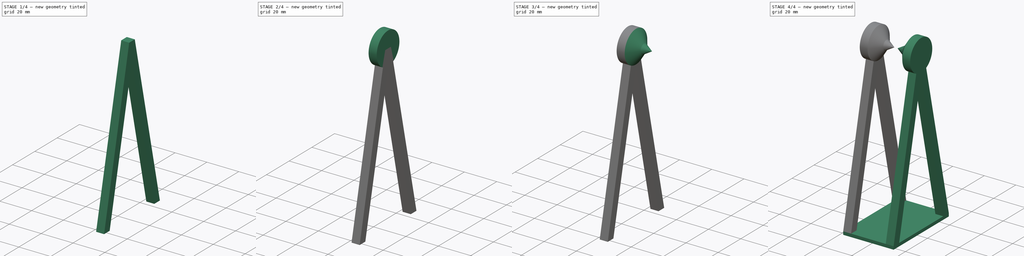
[diagram: build sequence overview — one tinted view per stage of 4, left to right]
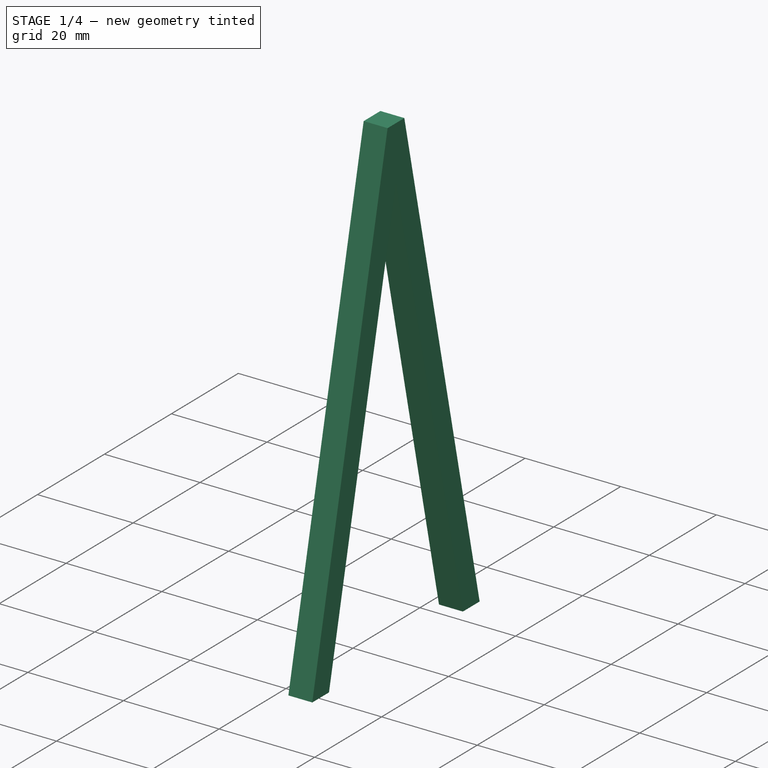
[diagram: stage 1 of 4 — iso view after this stage's code; geometry added in this stage tinted green]
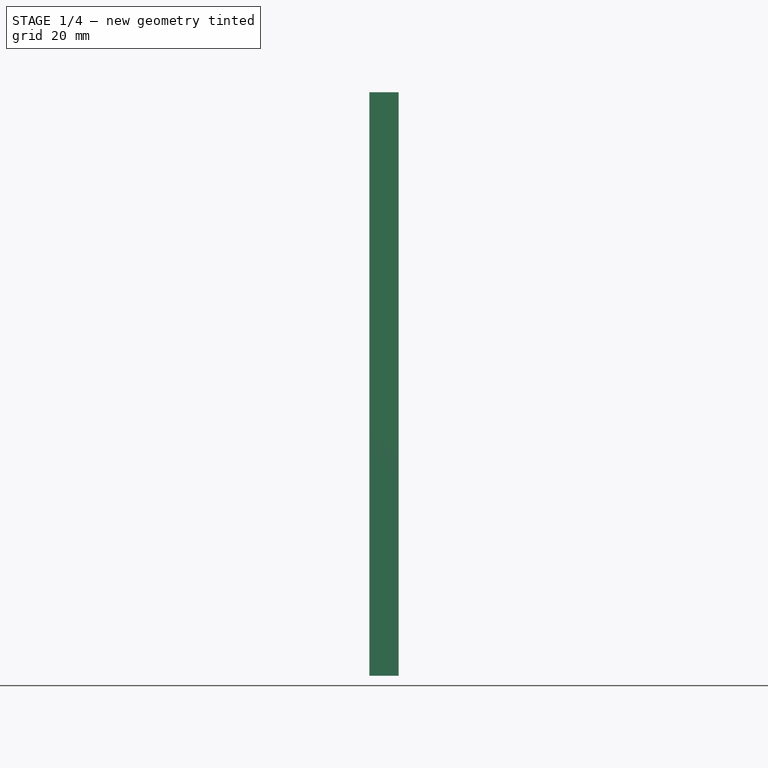
[diagram: stage 1 of 4 — front view after this stage's code; geometry added in this stage tinted green]
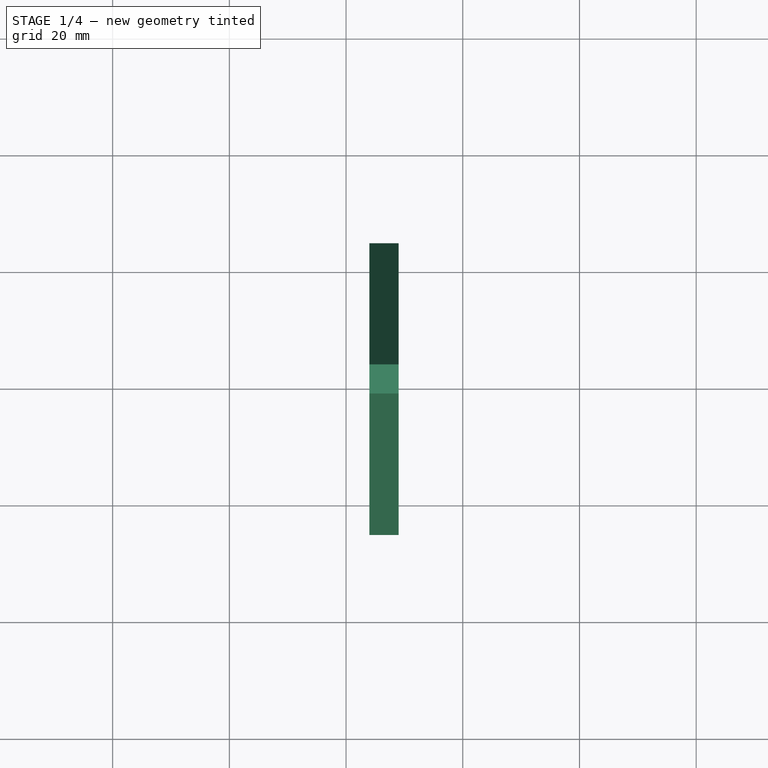
[diagram: stage 1 of 4 — top view after this stage's code; geometry added in this stage tinted green]
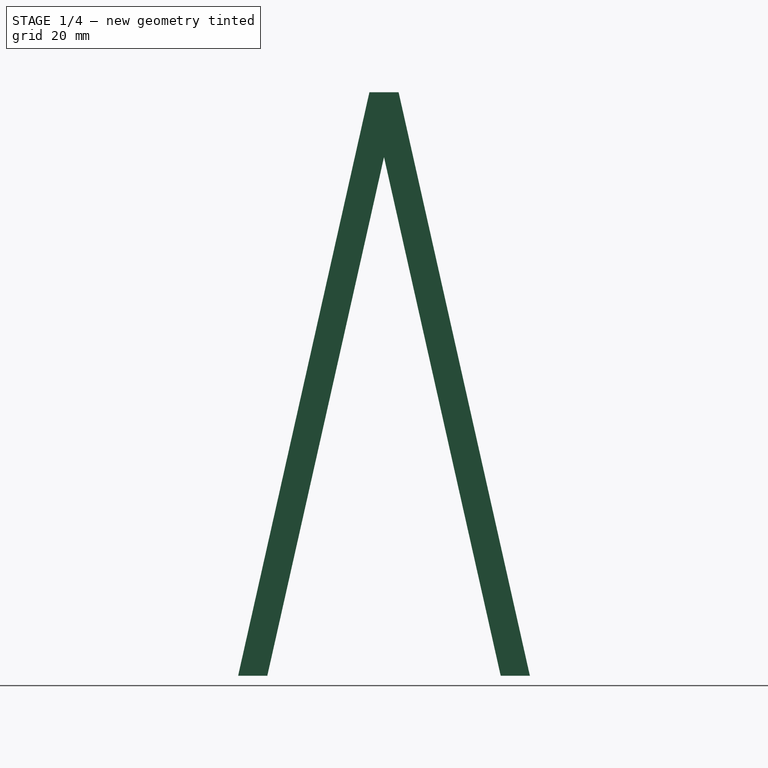
[diagram: stage 1 of 4 — right view after this stage's code; geometry added in this stage tinted green]
FCSTD DOCUMENT  (FreeCAD 0.18.4R)
Label: impeller-balancing-tool
License: All rights reserved
LicenseURL: http://en.wikipedia.org/wiki/All_rights_reserved
objects: Sketcher::SketchObject×5, Part::MultiFuse×3, PartDesign::Pad×2, PartDesign::Body×2, Part::Loft×2, PartDesign::AdditiveCone×2, PartDesign::FeatureBase×1, Part::Mirroring×1
note: 22 computed .brp shape members not serialized (recipe doc carries the construction recipe); baked Part::Feature solids carry a one-line shape summary decoded from their .brp

FEATURE [Sketcher::SketchObject] Sketch
  MapMode = 5
  Support = -> [XY_Plane]
  sketch-geometry (4):
    g0: LineSegment StartX=-16 StartY=25 StartZ=0 EndX=16 EndY=25 EndZ=0
    g1: LineSegment StartX=16 StartY=25 StartZ=0 EndX=16 EndY=-25 EndZ=0
    g2: LineSegment StartX=16 StartY=-25 StartZ=0 EndX=-16 EndY=-25 EndZ=0
    g3: LineSegment StartX=-16 StartY=-25 StartZ=0 EndX=-16 EndY=25 EndZ=0
  constraints (12):
    c: Coincident(g0,g1)
    c: Coincident(g1,g2)
    c: Coincident(g2,g3)
    c: Coincident(g3,g0)
    c: Horizontal(g0)
    c: Horizontal(g2)
    c: Vertical(g1)
    c: Vertical(g3)
    c: DistanceX(g0,g0) = 32
    c: DistanceY(g1,g1) = 50
    c: DistanceY(g-1,g0) = 25
    c: DistanceX(g0,g-1) = 16
FEATURE [PartDesign::Pad] Pad
  Length = 2
  Length2 = 100
  Profile = -> Sketch
  Type = 0
FEATURE [Sketcher::SketchObject] Sketch001
  ExternalGeometry = -> [Pad]
  MapMode = 5
  Placement = pos=(0,0,2) rot=(0,0,1;0rad)
  Support = -> [Pad]
  sketch-geometry (4):
    g0: LineSegment StartX=-16 StartY=25 StartZ=0 EndX=-11 EndY=25 EndZ=0
    g1: LineSegment StartX=-11 StartY=25 StartZ=0 EndX=-11 EndY=20 EndZ=0
    g2: LineSegment StartX=-11 StartY=20 StartZ=0 EndX=-16 EndY=20 EndZ=0
    g3: LineSegment StartX=-16 StartY=20 StartZ=0 EndX=-16 EndY=25 EndZ=0
  constraints (11):
    c: Coincident(g0,g1)
    c: Coincident(g1,g2)
    c: Coincident(g2,g3)
    c: Coincident(g3,g0)
    c: Horizontal(g0)
    c: Horizontal(g2)
    c: Vertical(g1)
    c: Vertical(g3)
    c: DistanceX(g0,g0) = 5
    c: DistanceY(g1,g1) = 5
    c: Coincident(g0,g-3)
FEATURE [Sketcher::SketchObject] Sketch002
  AttachmentOffset = pos=(0,0,100) rot=(0,0,1;0rad)
  MapMode = 5
  Placement = pos=(0,0,102) rot=(0,0,1;0rad)
  Support = -> [Pad]
  sketch-geometry (4):
    g0: LineSegment StartX=-16 StartY=2.5 StartZ=0 EndX=-11 EndY=2.5 EndZ=0
    g1: LineSegment StartX=-11 StartY=2.5 StartZ=0 EndX=-11 EndY=-2.5 EndZ=0
    g2: LineSegment StartX=-11 StartY=-2.5 StartZ=0 EndX=-16 EndY=-2.5 EndZ=0
    g3: LineSegment StartX=-16 StartY=-2.5 StartZ=0 EndX=-16 EndY=2.5 EndZ=0
  constraints (12):
    c: Coincident(g0,g1)
    c: Coincident(g1,g2)
    c: Coincident(g2,g3)
    c: Coincident(g3,g0)
    c: Horizontal(g0)
    c: Horizontal(g2)
    c: Vertical(g1)
    c: Vertical(g3)
    c: DistanceX(g0,g0) = 5
    c: DistanceX(g0,g-1) = 16
    c: DistanceY(g1,g1) = 5
    c: DistanceY(g-1,g0) = 2.5
FEATURE [Sketcher::SketchObject] Sketch003
  MapMode = 5
  Placement = pos=(0,0,2) rot=(0,0,1;0rad)
  Support = -> [Pad]
  sketch-geometry (4):
    g0: LineSegment StartX=-16 StartY=-20 StartZ=0 EndX=-11 EndY=-20 EndZ=0
    g1: LineSegment StartX=-11 StartY=-20 StartZ=0 EndX=-11 EndY=-25 EndZ=0
    g2: LineSegment StartX=-11 StartY=-25 StartZ=0 EndX=-16 EndY=-25 EndZ=0
    g3: LineSegment StartX=-16 StartY=-25 StartZ=0 EndX=-16 EndY=-20 EndZ=0
  constraints (12):
    c: Coincident(g0,g1)
    c: Coincident(g1,g2)
    c: Coincident(g2,g3)
    c: Coincident(g3,g0)
    c: Horizontal(g0)
    c: Horizontal(g2)
    c: Vertical(g1)
    c: Vertical(g3)
    c: DistanceX(g0,g0) = 5
    c: DistanceX(g0,g-1) = 16
    c: DistanceY(g1,g1) = 5
    c: DistanceY(g1,g-1) = 25
FEATURE [PartDesign::Body] Body
  Group = -> [Sketch,Pad,Sketch001,Sketch002,Sketch003]
  Origin = -> Origin
  Tip = -> Pad
FEATURE [Part::Loft] Loft
  Closed = false
  MaxDegree = 5
  Ruled = false
  Sections = -> [Sketch001,Sketch002]
  Solid = true
FEATURE [Part::Loft] Loft001
  Closed = false
  MaxDegree = 5
  Ruled = false
  Sections = -> [Sketch003,Sketch002]
  Solid = true
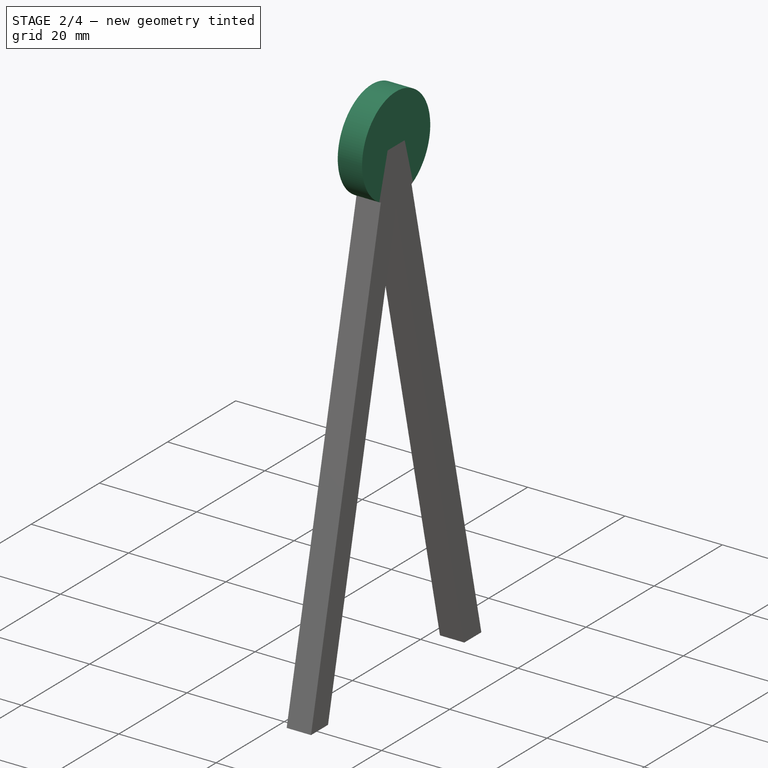
[diagram: stage 2 of 4 — iso view after this stage's code; geometry added in this stage tinted green]
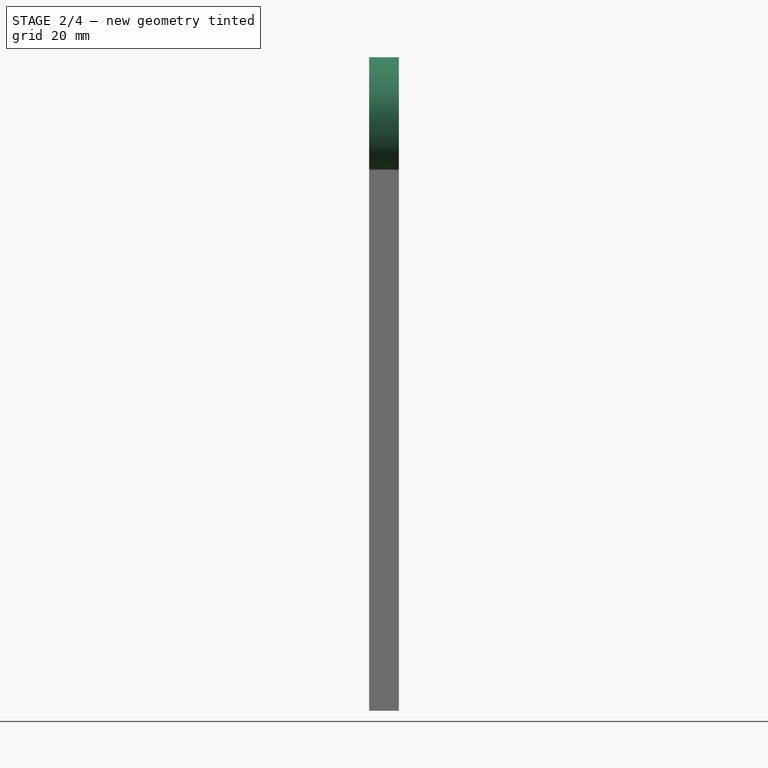
[diagram: stage 2 of 4 — front view after this stage's code; geometry added in this stage tinted green]
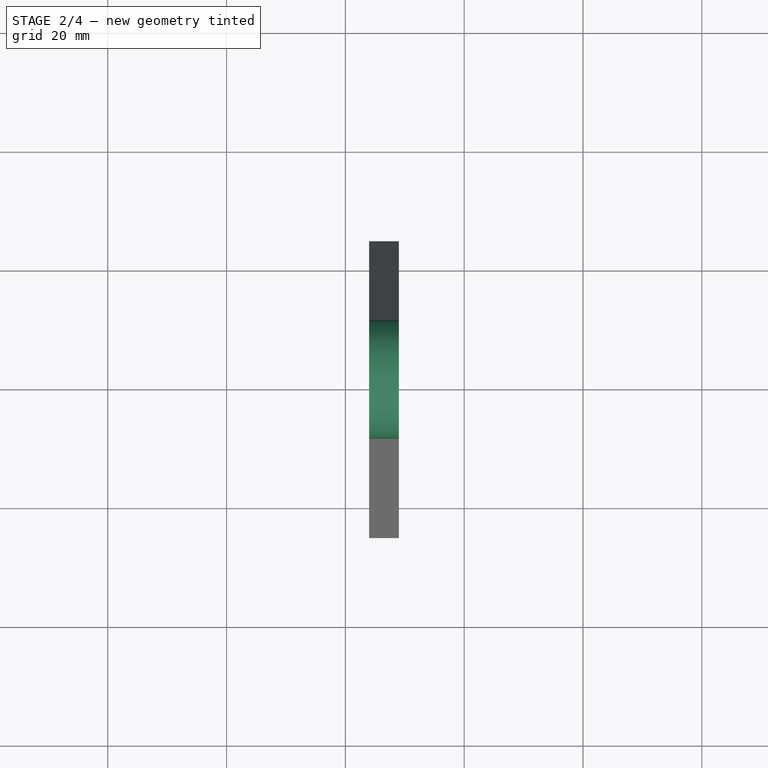
[diagram: stage 2 of 4 — top view after this stage's code; geometry added in this stage tinted green]
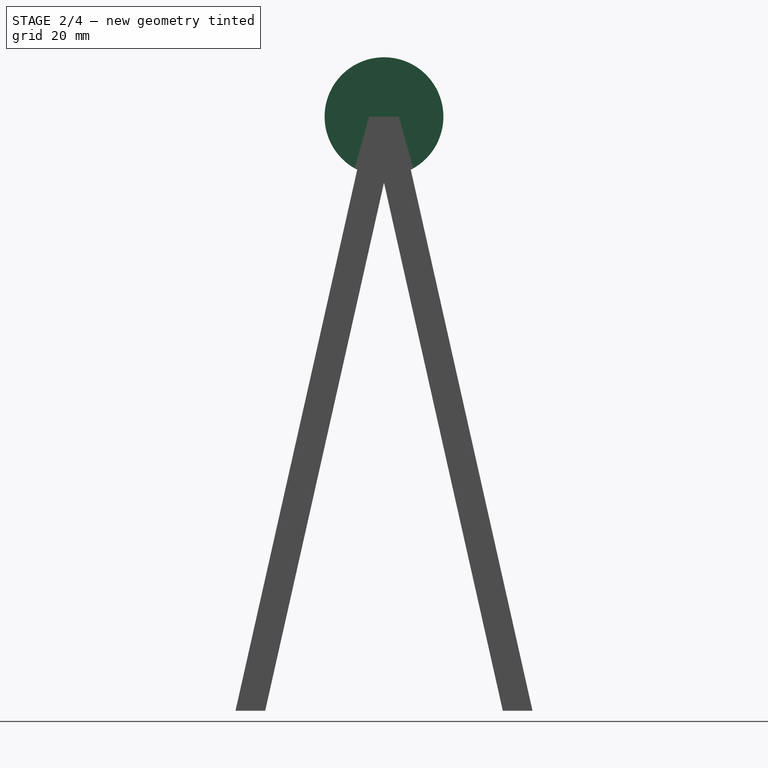
[diagram: stage 2 of 4 — right view after this stage's code; geometry added in this stage tinted green]
FEATURE [Part::MultiFuse] Fusion
  Shapes = -> [Loft,Loft001]
FEATURE [PartDesign::FeatureBase] BaseFeature
  BaseFeature = -> Fusion
FEATURE [Sketcher::SketchObject] Sketch004
  MapMode = 5
  Placement = pos=(-11,0,0) rot=(0.57735,0.57735,0.57735;2.0944rad)
  Support = -> [BaseFeature]
  sketch-geometry (1):
    g0: Circle CenterX=0 CenterY=102 CenterZ=0 NormalX=0 NormalY=0 NormalZ=1 AngleXU=0 Radius=10
  constraints (3):
    c: Radius(g0) = 10
    c: DistanceY(g-1,g0) = 102
    c: DistanceX(g-1,g0) = 0
FEATURE [PartDesign::Pad] Pad001
  BaseFeature = -> BaseFeature
  Length = 5
  Length2 = 100
  Profile = -> Sketch004
  Reversed = true
  Type = 0
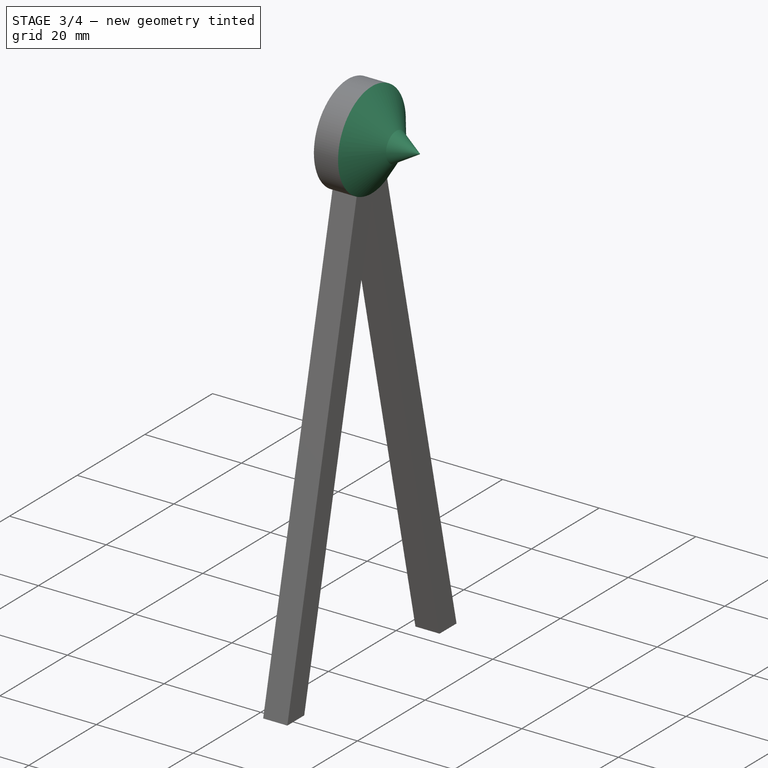
[diagram: stage 3 of 4 — iso view after this stage's code; geometry added in this stage tinted green]
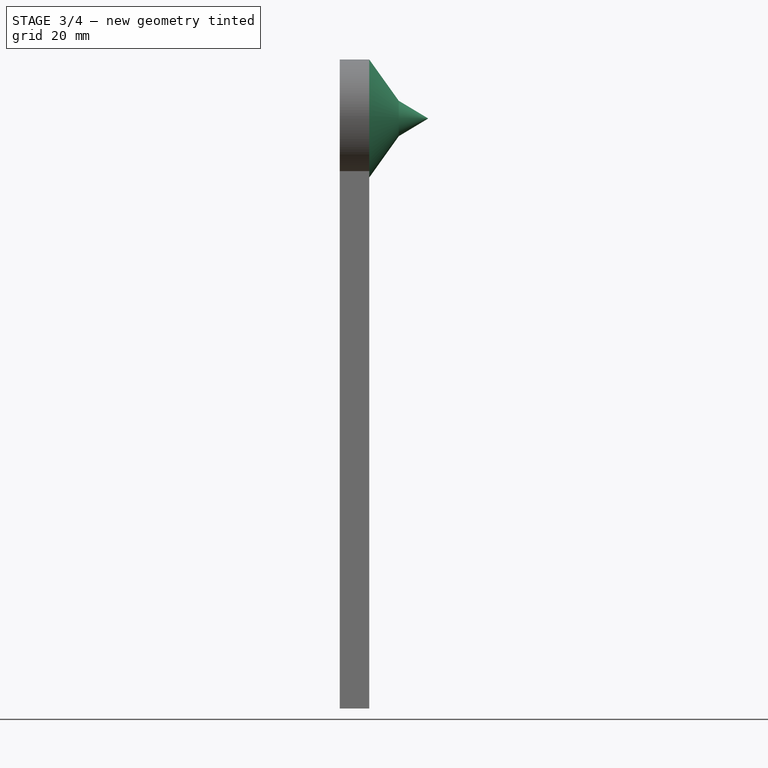
[diagram: stage 3 of 4 — front view after this stage's code; geometry added in this stage tinted green]
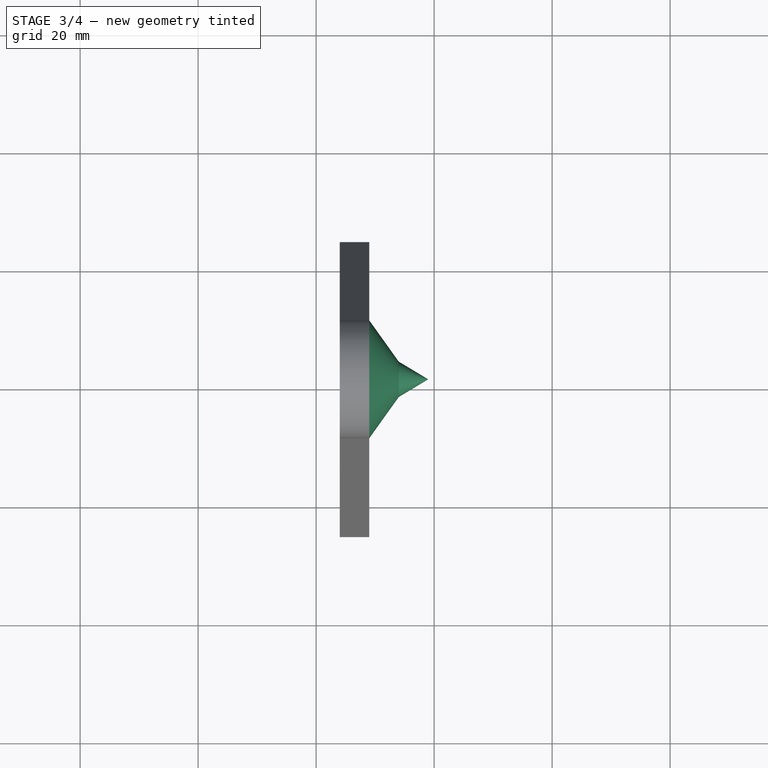
[diagram: stage 3 of 4 — top view after this stage's code; geometry added in this stage tinted green]
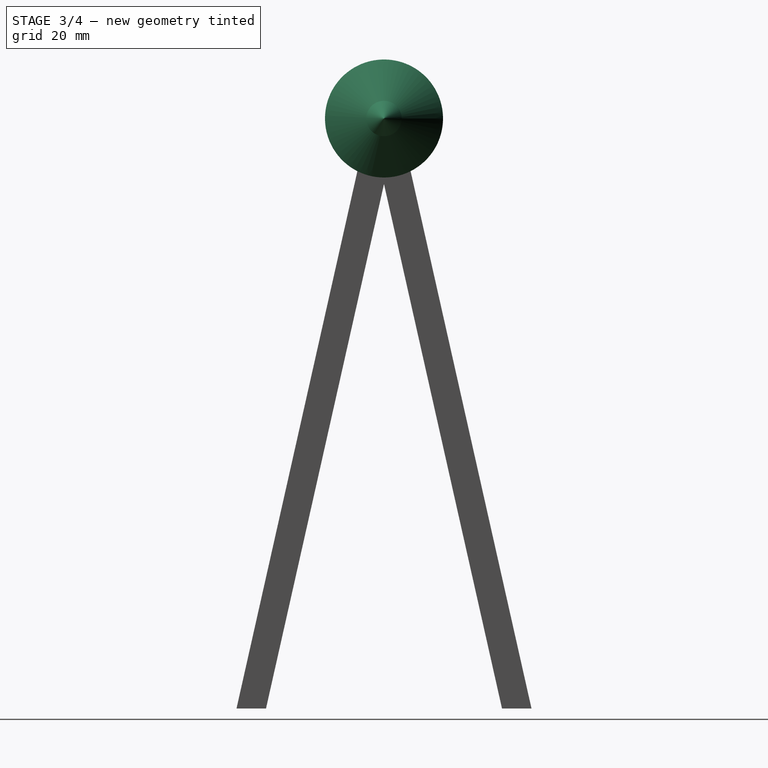
[diagram: stage 3 of 4 — right view after this stage's code; geometry added in this stage tinted green]
FEATURE [PartDesign::AdditiveCone] Cone
  Angle = 360
  AttacherType = Attacher::AttachEngine3D
  AttachmentOffset = pos=(0,102,0) rot=(0,0,1;0rad)
  BaseFeature = -> Pad001
  Height = 5
  MapMode = 5
  Placement = pos=(-11,0,102) rot=(0.57735,0.57735,0.57735;2.0944rad)
  Radius1 = 10
  Radius2 = 3
  Support = -> [Pad001]
FEATURE [PartDesign::AdditiveCone] Cone001
  Angle = 360
  AttacherType = Attacher::AttachEngine3D
  BaseFeature = -> Cone
  Height = 5
  MapMode = 5
  Placement = pos=(-6,0,102) rot=(0.57735,0.57735,0.57735;2.0944rad)
  Radius1 = 3
  Radius2 = 0
  Support = -> [Cone]
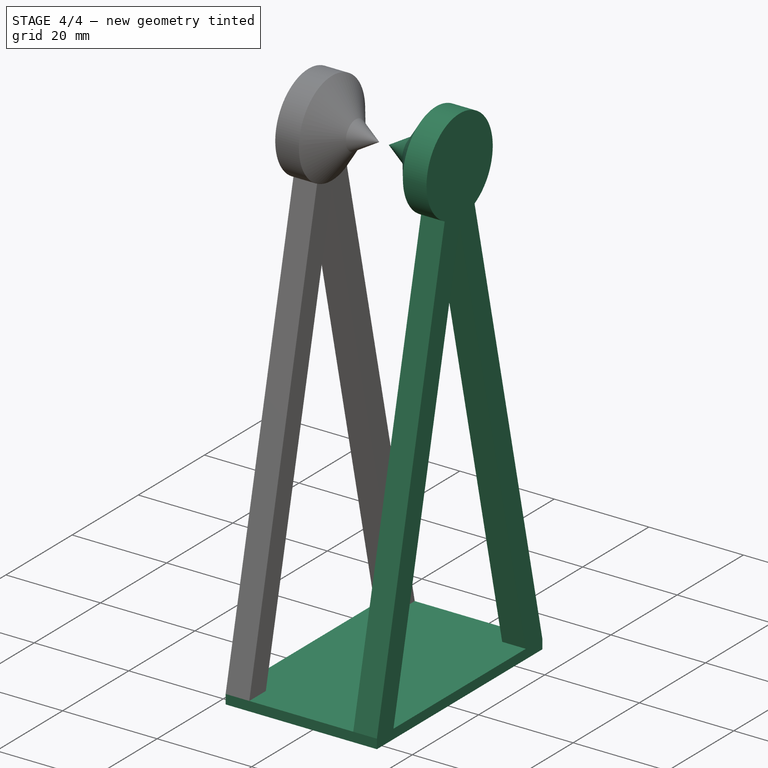
[diagram: stage 4 of 4 — iso view after this stage's code; geometry added in this stage tinted green]
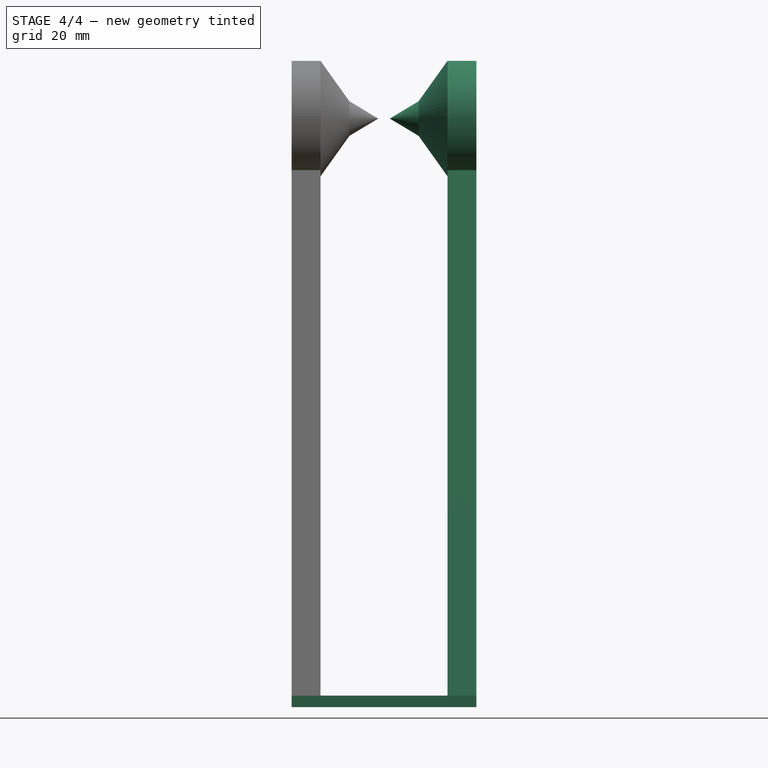
[diagram: stage 4 of 4 — front view after this stage's code; geometry added in this stage tinted green]
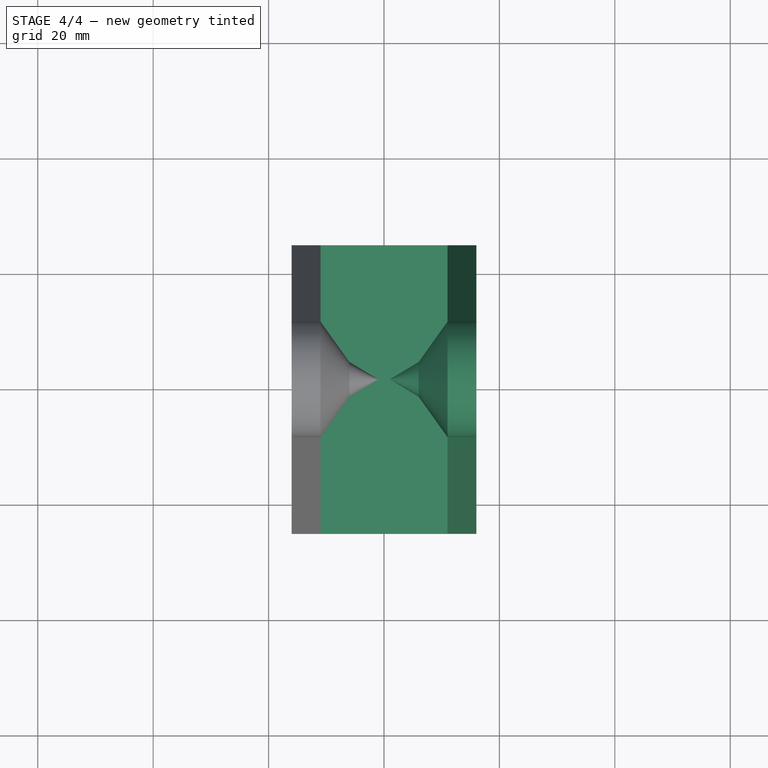
[diagram: stage 4 of 4 — top view after this stage's code; geometry added in this stage tinted green]
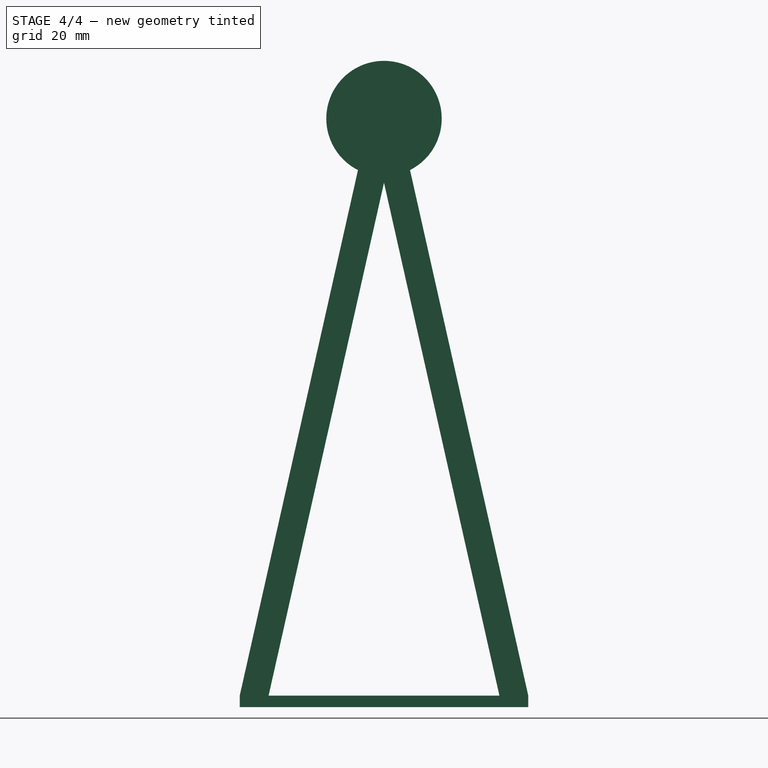
[diagram: stage 4 of 4 — right view after this stage's code; geometry added in this stage tinted green]
FEATURE [PartDesign::Body] Body001
  BaseFeature = -> Fusion
  Group = -> [BaseFeature,Sketch004,Pad001,Cone,Cone001]
  Origin = -> Origin001
  Tip = -> Cone001
FEATURE [Part::Mirroring] Part__Mirroring  label="Body001 (Mirror #1)"
  Base = (0,0,0)
  Normal = (1,0,0)
  Source = -> Body001
FEATURE [Part::MultiFuse] Fusion001
  Shapes = -> [Part__Mirroring,Body001]
FEATURE [Part::MultiFuse] Fusion002  label="tool"
  Shapes = -> [Fusion001,Body]
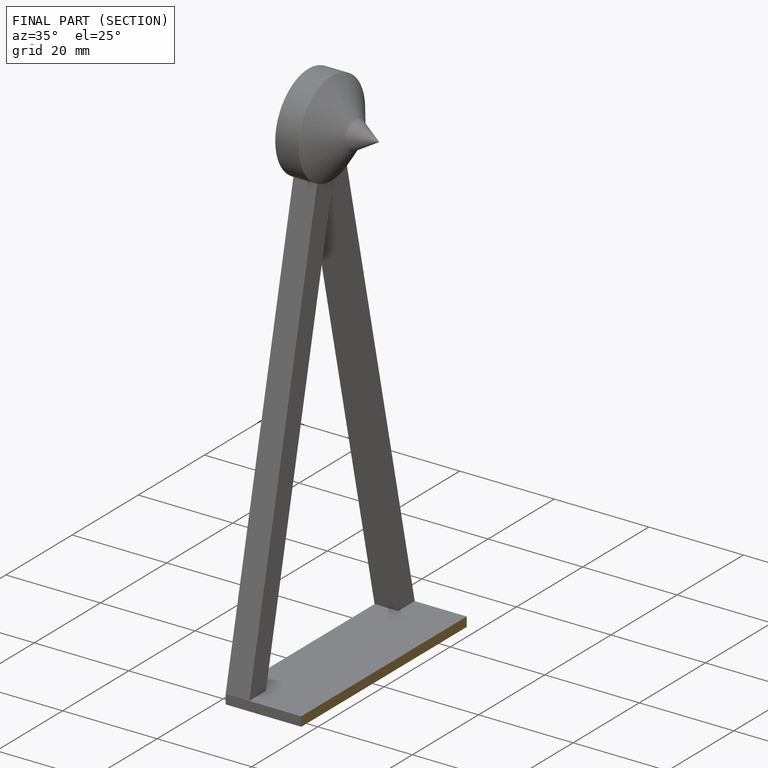
[diagram: finished part — half-section view (interior)]
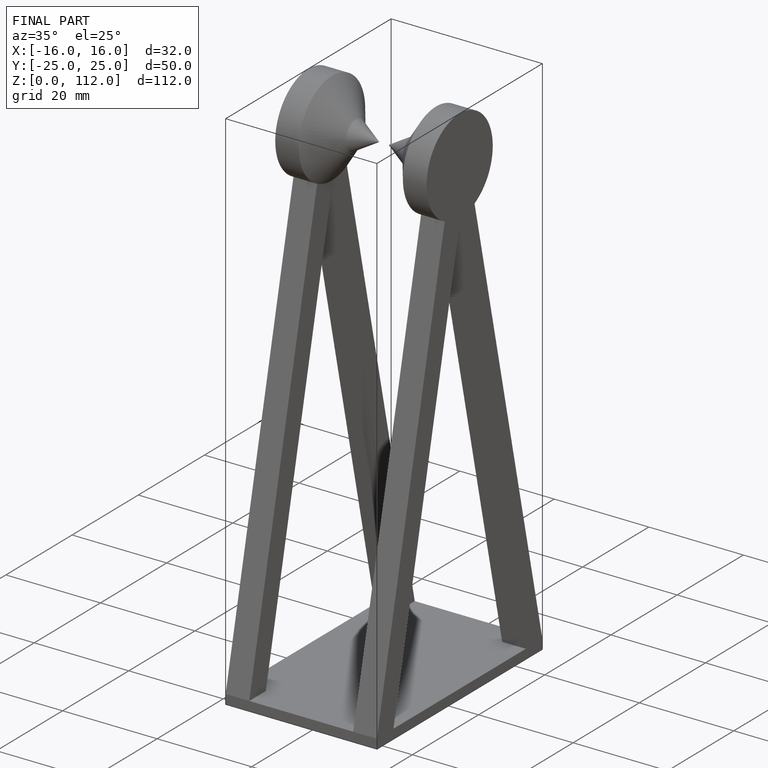
[diagram: finished part — iso view with bounding-box wireframe]
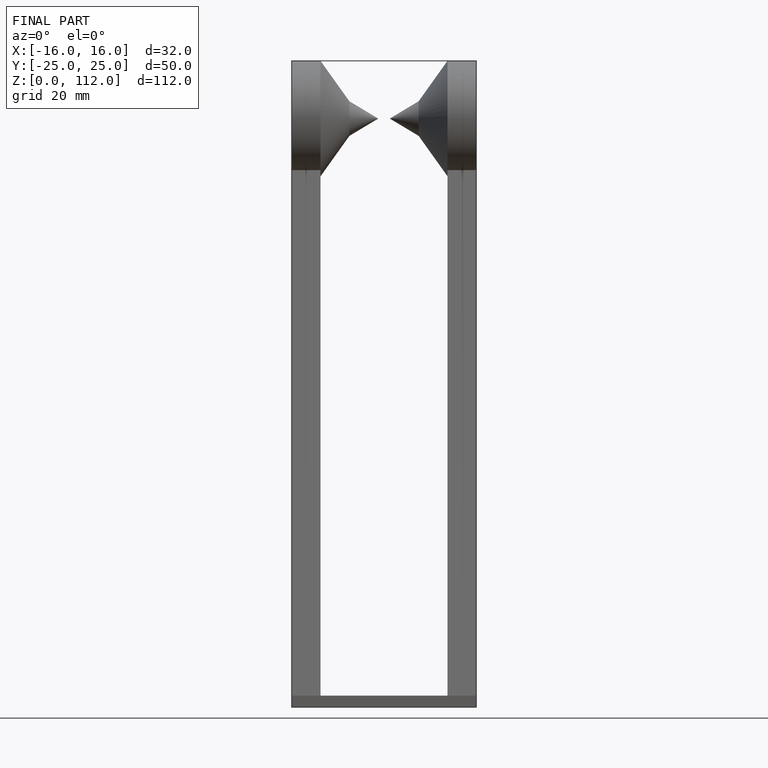
[diagram: finished part — front view with bounding-box wireframe]
